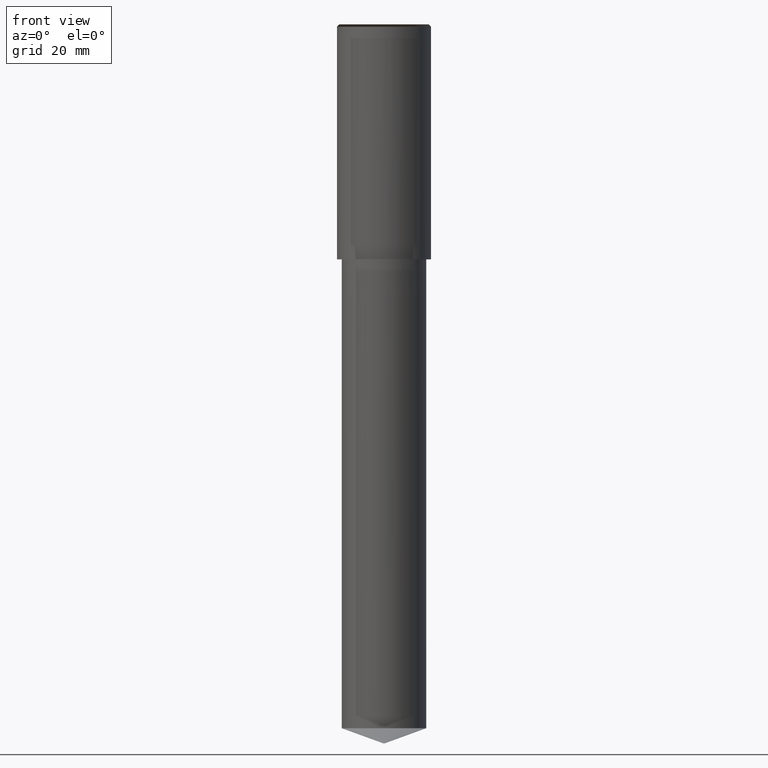
[diagram: clean part render]
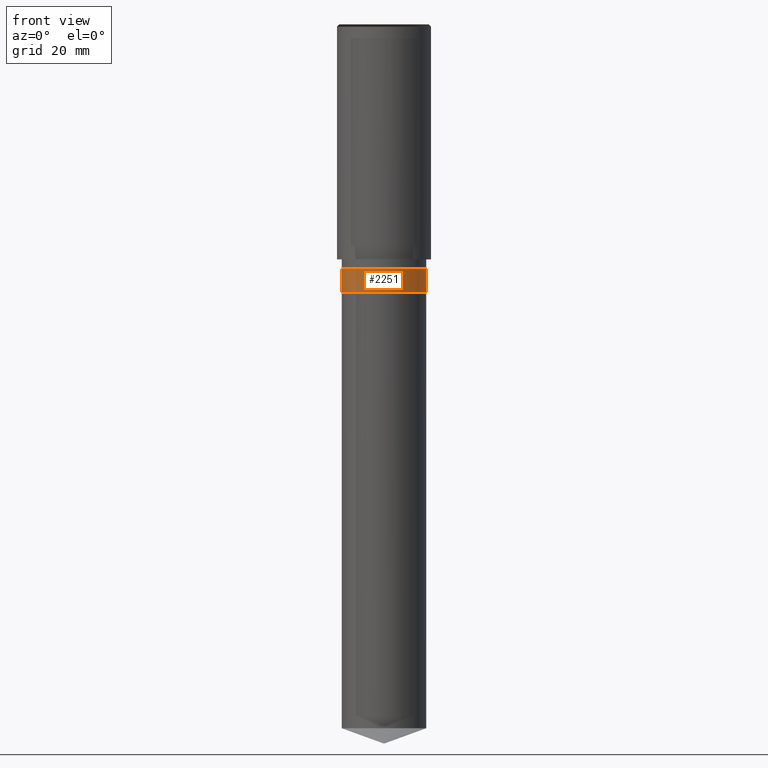
[diagram: same view with one face highlighted and labeled with its STEP entity id]
A machine part, front view. The second image highlights one B-rep face of the part: STEP entity #2251.
In plain terms, the highlighted face is a freeform B-spline surface patch.
Its self-contained STEP definition (entity closure, byte-faithful):
#1918=CARTESIAN_POINT('',(9.0,0.0,-7.0));
#1922=CARTESIAN_POINT('',(-9.0,0.0,-7.0));
#1927=CARTESIAN_POINT('',(-9.0,-9.0,-7.0));
#1928=CARTESIAN_POINT('',(0.0,-9.0,-7.0));
#1929=CARTESIAN_POINT('',(9.0,-9.0,-7.0));
#1930=CARTESIAN_POINT('',(9.0,0.0,-2.0));
#1934=CARTESIAN_POINT('',(-9.0,0.0,-2.0));
#1956=CARTESIAN_POINT('',(-9.0,-9.0,-2.0));
#1957=CARTESIAN_POINT('',(0.0,-9.0,-2.0));
#1958=CARTESIAN_POINT('',(9.0,-9.0,-2.0));
#2232=(
BOUNDED_SURFACE()
B_SPLINE_SURFACE(1,2,(
(#1922,#1927,#1928,#1929,#1918),
(#1934,#1956,#1957,#1958,#1930)
), .UNSPECIFIED.,.F.,.F.,.F.)
B_SPLINE_SURFACE_WITH_KNOTS((2,2),(3,2,3),(
0.0,1.0),(
0.0,0.5,1.0), .UNSPECIFIED.)
GEOMETRIC_REPRESENTATION_ITEM()
RATIONAL_B_SPLINE_SURFACE(((1.0,0.707106781187,1.0,0.707106781187,1.0),
(1.0,0.707106781187,1.0,0.707106781187,1.0)
))
REPRESENTATION_ITEM('')
SURFACE()
);
#2233=(
BOUNDED_CURVE()
B_SPLINE_CURVE(2,(#1918,#1929,#1928,#1927,#1922),.UNSPECIFIED.,.F.,.F.)
B_SPLINE_CURVE_WITH_KNOTS((3,2,3),
(0.0,0.5,1.0),.UNSPECIFIED.)
CURVE()
GEOMETRIC_REPRESENTATION_ITEM()
RATIONAL_B_SPLINE_CURVE((1.0,0.707106781187,1.0,0.707106781187,1.0))
REPRESENTATION_ITEM('')
);
#2234=(
BOUNDED_CURVE()
B_SPLINE_CURVE(1,(#1922,#1934),.UNSPECIFIED.,.F.,.F.)
B_SPLINE_CURVE_WITH_KNOTS((2,2),
(0.0,1.0),.UNSPECIFIED.)
CURVE()
GEOMETRIC_REPRESENTATION_ITEM()
RATIONAL_B_SPLINE_CURVE((1.0,1.0))
REPRESENTATION_ITEM('')
);
#2235=(
BOUNDED_CURVE()
B_SPLINE_CURVE(2,(#1934,#1956,#1957,#1958,#1930),.UNSPECIFIED.,.F.,.F.)
B_SPLINE_CURVE_WITH_KNOTS((3,2,3),
(0.0,0.5,1.0),.UNSPECIFIED.)
CURVE()
GEOMETRIC_REPRESENTATION_ITEM()
RATIONAL_B_SPLINE_CURVE((1.0,0.707106781187,1.0,0.707106781187,1.0))
REPRESENTATION_ITEM('')
);
#2236=(
BOUNDED_CURVE()
B_SPLINE_CURVE(1,(#1930,#1918),.UNSPECIFIED.,.F.,.F.)
B_SPLINE_CURVE_WITH_KNOTS((2,2),
(0.0,1.0),.UNSPECIFIED.)
CURVE()
GEOMETRIC_REPRESENTATION_ITEM()
RATIONAL_B_SPLINE_CURVE((1.0,1.0))
REPRESENTATION_ITEM('')
);
#2237=VERTEX_POINT('',#1918);
#2238=VERTEX_POINT('',#1922);
#2239=VERTEX_POINT('',#1930);
#2240=VERTEX_POINT('',#1934);
#2241=EDGE_CURVE('',#2237,#2238,#2233,.T.);
#2242=EDGE_CURVE('',#2238,#2240,#2234,.T.);
#2243=EDGE_CURVE('',#2240,#2239,#2235,.T.);
#2244=EDGE_CURVE('',#2239,#2237,#2236,.T.);
#2245=ORIENTED_EDGE('',*,*,#2241,.T.);
#2246=ORIENTED_EDGE('',*,*,#2242,.T.);
#2247=ORIENTED_EDGE('',*,*,#2243,.T.);
#2248=ORIENTED_EDGE('',*,*,#2244,.T.);
#2249=EDGE_LOOP('',(#2245,#2246,#2247,#2248));
#2250=FACE_OUTER_BOUND('',#2249,.T.);
#2251=ADVANCED_FACE('',(#2250),#2232,.T.);